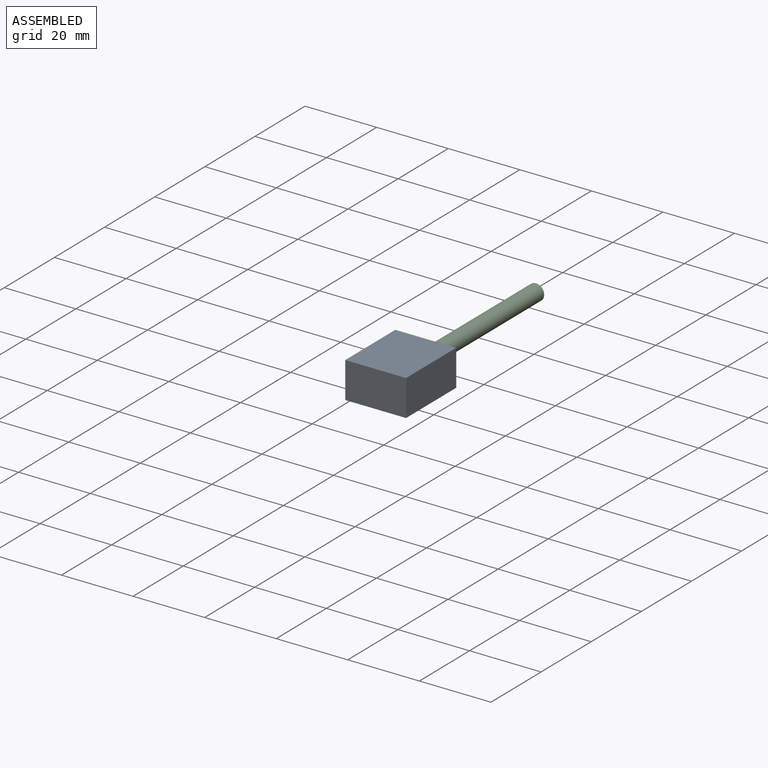
[diagram: assembled view]
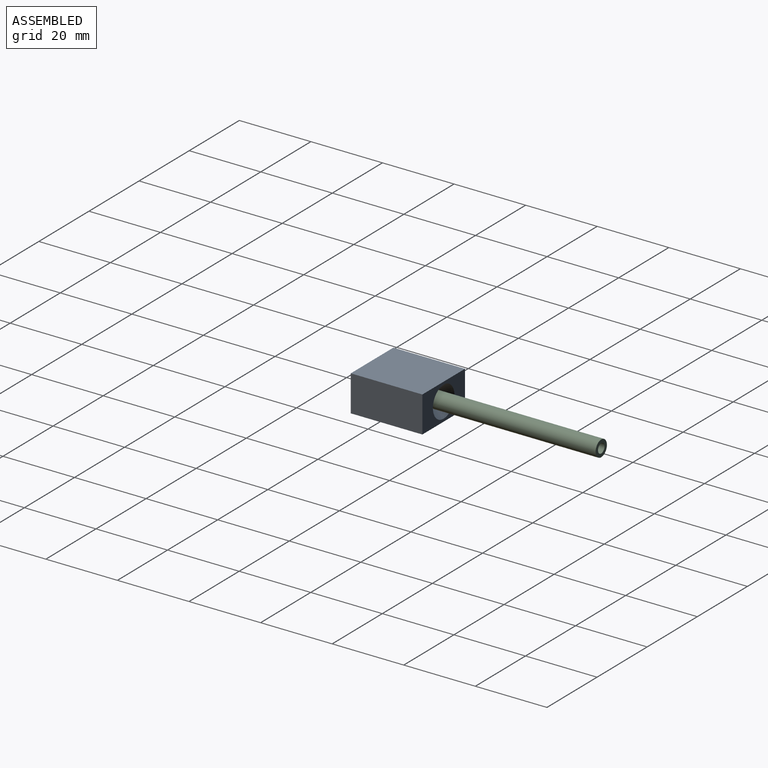
[diagram: assembled view, second angle]
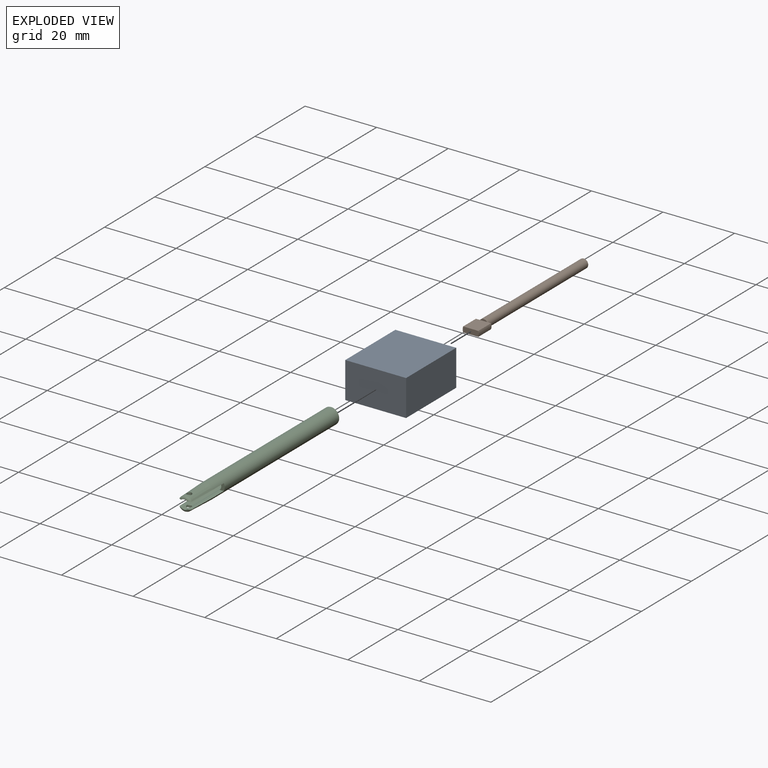
[diagram: exploded view]
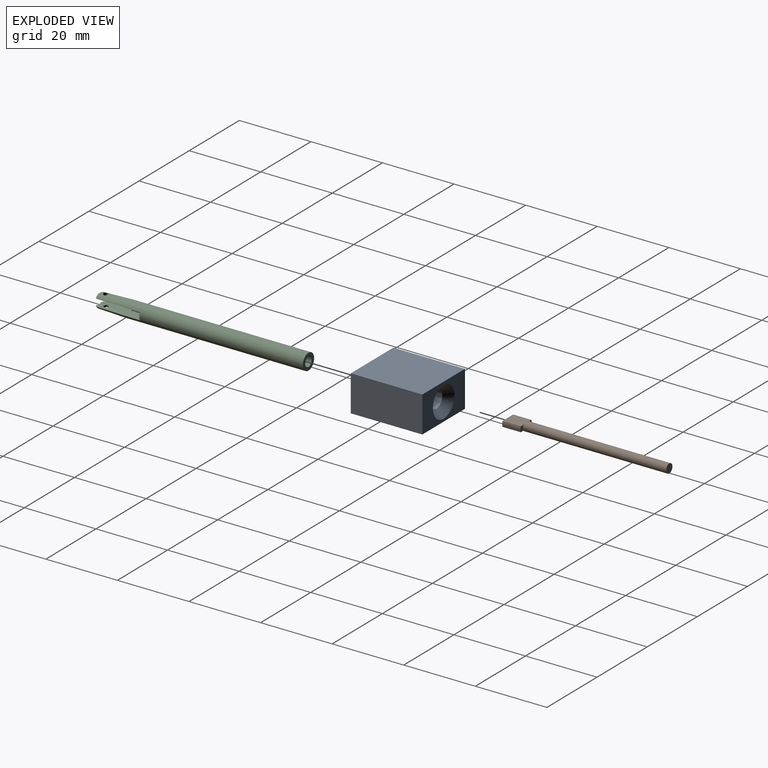
[diagram: exploded view, second angle]
ASSEMBLY  parts=3 mates=2
PART A: 16 faces, bbox 17x20x10.1 mm
  f0: cylinder r=0.75mm len=1.5mm, axis (-1,0,0), area 2.2mm2, adj f1,f2,f9
  f1: extruded ~8x4.6mm, area 115.4mm2, adj f0,f2,f5,f6
  f2: bspline ~5x4.6mm, area 58.8mm2, adj f0,f1,f4,f6
  f3: plane 17.01x10.11mm, normal (0,1,0), area 113.7mm2, adj f5,f11,f12,f13,f14
  f4: plane 3.8x2.5mm, normal (0,1,0), area 7.5mm2, adj f2
  f5: bspline ~8.6x8.6mm, area 58.6mm2, adj f1,f3
  f6: cylinder r=0.75mm len=1.5mm, axis (-1,0,0), area 2.2mm2, adj f1,f2,f10
  f7: plane 0.5x0.5mm, normal (-1,0,0), area 0.2mm2, adj f10
  f8: plane 0.5x0.5mm, normal (1,0,0), area 0.2mm2, adj f9
  f9: cone r=0.25mm half-angle=45deg, axis (-1,0,0), area 2.2mm2, adj f0,f8
  f10: cone r=0.75mm half-angle=45deg, axis (1,0,0), area 2.2mm2, adj f6,f7
  f11: plane 20x17mm, normal (0,0,-1), area 340mm2, adj f3,f12,f14,f15
  f12: plane 20x10.1mm, normal (1,0,0), area 202mm2, adj f3,f11,f13,f15
  f13: plane 20x17mm, normal (0,0,1), area 340mm2, adj f3,f12,f14,f15
  f14: plane 20x10.1mm, normal (-1,0,0), area 202mm2, adj f3,f11,f13,f15
  f15: plane 17x10.1mm, normal (0,-1,0), area 171.7mm2, adj f11,f12,f13,f14
PART B: 11 faces, bbox 4.5x45.1x2.5 mm
  f0: plane 2x0.5mm, normal (0,1,0), area 0.7mm2, adj f1,f6
  f1: cylinder r=1.25mm len=40mm, axis (0,1,0), area 314.2mm2, adj f0,f2,f3,f4,f5
  f2: plane 2.5x2.5mm, normal (0,-1,0), area 4.9mm2, adj f1
  f3: plane 2x0.5mm, normal (0,1,0), area 0.7mm2, adj f1,f8
  f4: plane 1.5x1.25mm, normal (0,-1,0), area 1.6mm2, adj f1,f6,f8,f9
  f5: plane 1.5x1.25mm, normal (0,-1,0), area 1.6mm2, adj f1,f6,f7,f8
  f6: plane 5.1x4.24mm, normal (0,0,-1), area 21.6mm2, adj f0,f4,f5,f7,f9,f10
  f7: cylinder r=2.25mm len=5.1mm, axis (0,-1,0), area 7.8mm2, adj f5,f6,f8,f10
  f8: plane 5.1x4.24mm, normal (0,0,1), area 21.6mm2, adj f3,f4,f5,f7,f9,f10
  f9: cylinder r=2.25mm len=5.1mm, axis (0,-1,0), area 7.8mm2, adj f4,f6,f8,f10
  f10: plane 4.5x1.5mm, normal (0,1,0), area 6.6mm2, adj f6,f7,f8,f9
PART C: 17 faces, bbox 4.5x58.6x4.5 mm
  f0: cylinder r=1mm len=2mm, axis (0,0,1), area 2.1mm2, adj f8,f13
  f1: plane 12.91x1.2mm, normal (0,0,1), area 13.7mm2, adj f6,f8,f9,f11,f16
  f2: plane 12.91x1.2mm, normal (0,0,1), area 13.7mm2, adj f3,f6,f8,f11,f16
  f3: plane 2x1.42mm, normal (0,1,0), area 2mm2, adj f2,f6,f10,f11
  f4: plane 12.91x1.2mm, normal (0,0,-1), area 13.7mm2, adj f5,f6,f9,f11,f15
  f5: cone r=2.25mm half-angle=1.9deg, axis (0,-1,0), area 34.4mm2, adj f4,f6,f10,f14,f15
  f6: cylinder r=2.25mm len=50mm, axis (0,1,0), area 689.1mm2, adj f1,f2,f3,f4,f5,f7,f8,f9
  f7: plane 4.5x4.5mm, normal (0,-1,0), area 10.6mm2, adj f6,f11
  f8: cone r=2.25mm half-angle=1.9deg, axis (0,-1,0), area 32.7mm2, adj f0,f1,f2,f6,f16
  f9: plane 2x1.42mm, normal (0,1,0), area 2mm2, adj f1,f4,f6,f11
  f10: plane 12.91x1.2mm, normal (0,0,-1), area 13.7mm2, adj f3,f5,f6,f11,f15
  f11: cylinder r=1.3mm len=58.61mm, axis (0,1,0), area 416.7mm2, adj f1,f2,f3,f4,f7,f9,f10,f12
  f12: cylinder r=0.7mm len=1.4mm, axis (0,0,1), area 1.6mm2, adj f11,f13
  f13: plane 2x2mm, normal (0,0,-1), area 1.6mm2, adj f0,f12
  f14: cylinder r=0.7mm len=1.4mm, axis (0,0,-1), area 3.4mm2, adj f5,f11
  f15: torus R=1.23mm, axis (0,1,0), area 3.6mm2, adj f4,f5,f10,f11
  f16: torus R=1.23mm, axis (0,1,0), area 3.6mm2, adj f1,f2,f8,f11
PLACE A t=(-11.43,3.13,-3.06)mm fixed
PLACE B rot(axis=(1,0,0),180deg) t=(-11.43,9.37,-3.06)mm
PLACE C rot(axis=(0,0,1),180deg) t=(-11.43,7.17,-3.06)mm
MATE fastened C.f6 <-> B.f1  axis (0,1,0) through (-11.43,57.17,-3.06)mm
MATE slider B.f1 <-> A.f4  axis (0,-1,0) through (-11.43,4.27,-3.06)mm
